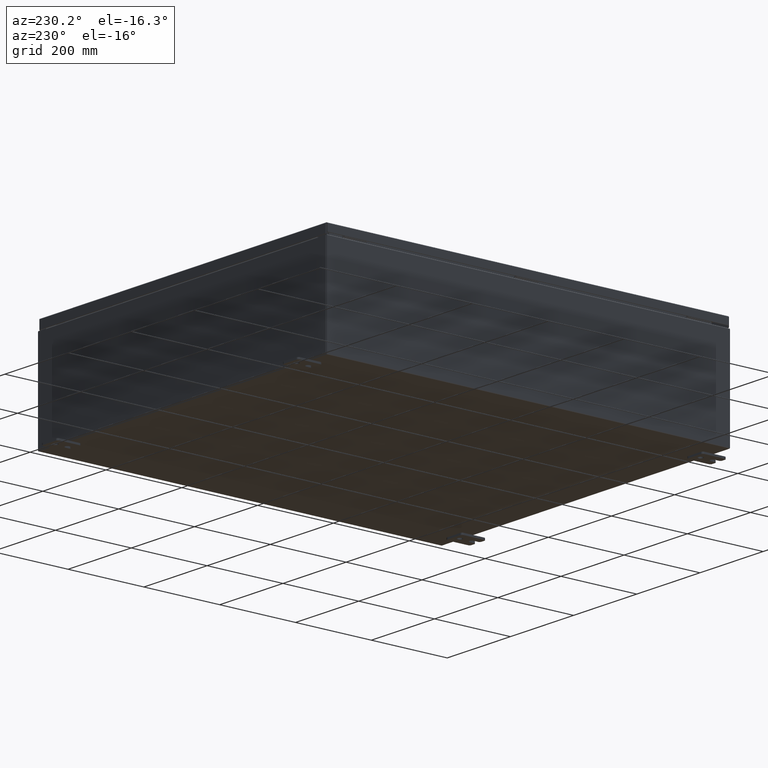
[diagram: clean part render]
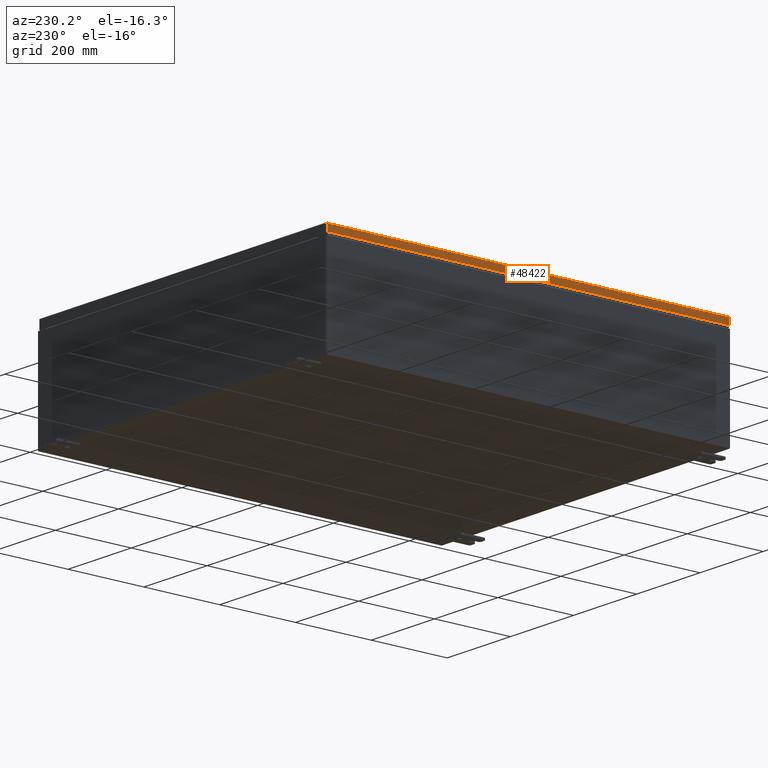
[diagram: same view with one face highlighted and labeled with its STEP entity id]
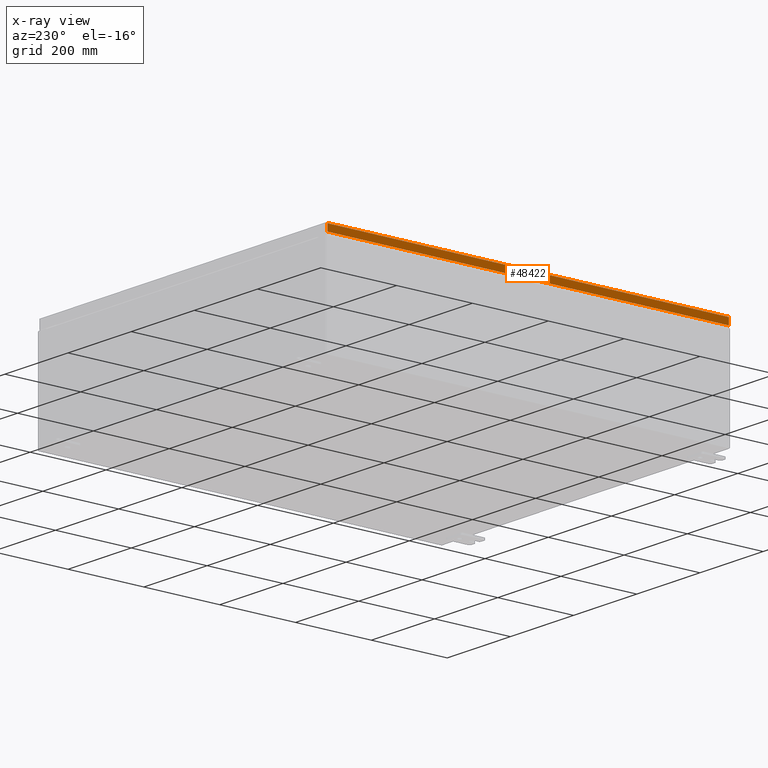
[diagram: x-ray of the same camera — body ghosted, the highlighted face saturated]
A machine part, auxiliary view. The second image highlights one B-rep face of the part: STEP entity #48422.
The next image is the same camera in x-ray: the body ghosted, the highlighted face saturated — about 0% of this face is hidden behind the body in this view.
In plain terms, the highlighted planar face has unit normal (1, -0, -0).
Its self-contained STEP definition (entity closure, byte-faithful):
#1740 = CARTESIAN_POINT ( 'NONE',  ( -17.93750000000000000, 1.872335221926305700E-015, 5.468538495836085700E-014 ) ) ;
#3647 = CARTESIAN_POINT ( 'NONE',  ( -17.93750000000000400, -20.93750000000000000, -0.08770000000000004200 ) ) ;
#3738 = EDGE_CURVE ( 'NONE', #6553, #42019, #26381, .T. ) ;
#6090 = AXIS2_PLACEMENT_3D ( 'NONE', #1740, #38862, #7067 ) ;
#6397 = VECTOR ( 'NONE', #25399, 39.37007874015748100 ) ;
#6553 = VERTEX_POINT ( 'NONE', #65268 ) ;
#7067 = DIRECTION ( 'NONE',  ( -3.034122441942816500E-015, 0.0000000000000000000, -1.000000000000000000 ) ) ;
#8733 = DIRECTION ( 'NONE',  ( -1.043810576683650200E-016, -1.000000000000000000, 1.565715865025488000E-016 ) ) ;
#10571 = LINE ( 'NONE', #43394, #51246 ) ;
#11710 = VECTOR ( 'NONE', #8733, 39.37007874015748100 ) ;
#11720 = CARTESIAN_POINT ( 'NONE',  ( -17.93750000000000400, -20.84865786437626800, -0.08770000000000334500 ) ) ;
#12519 = FACE_OUTER_BOUND ( 'NONE', #46049, .T. ) ;
#14723 = CARTESIAN_POINT ( 'NONE',  ( -17.93750000000000400, -20.84865786437627100, -0.07469999999999976700 ) ) ;
#16696 = CARTESIAN_POINT ( 'NONE',  ( -17.93750000000000700, -20.84865786437626800, -0.7949999999999996000 ) ) ;
#22862 = ORIENTED_EDGE ( 'NONE', *, *, #3738, .T. ) ;
#25399 = DIRECTION ( 'NONE',  ( -3.034122441942816100E-015, 6.982962677686267500E-015, -1.000000000000000000 ) ) ;
#26260 = EDGE_CURVE ( 'NONE', #34564, #60704, #50353, .T. ) ;
#26381 = LINE ( 'NONE', #57338, #67087 ) ;
#27713 = ORIENTED_EDGE ( 'NONE', *, *, #47958, .F. ) ;
#32697 = DIRECTION ( 'NONE',  ( 1.043810576683658800E-016, 1.000000000000000000, 1.239525059811844700E-016 ) ) ;
#34564 = VERTEX_POINT ( 'NONE', #11720 ) ;
#38862 = DIRECTION ( 'NONE',  ( 1.000000000000000000, -1.043810576683654900E-016, -3.034122441942816500E-015 ) ) ;
#39941 = LINE ( 'NONE', #3647, #11710 ) ;
#41311 = ORIENTED_EDGE ( 'NONE', *, *, #53577, .F. ) ;
#42019 = VERTEX_POINT ( 'NONE', #50018 ) ;
#43394 = CARTESIAN_POINT ( 'NONE',  ( -17.93750000000000700, -20.93750000000000000, -0.7949999999999997100 ) ) ;
#46049 = EDGE_LOOP ( 'NONE', ( #27713, #22862, #41311, #55536 ) ) ;
#46665 = DIRECTION ( 'NONE',  ( -3.034122441942816100E-015, 6.982962677686267500E-015, -1.000000000000000000 ) ) ;
#47958 = EDGE_CURVE ( 'NONE', #6553, #34564, #39941, .T. ) ;
#48422 = ADVANCED_FACE ( 'NONE', ( #12519 ), #59988, .F. ) ;
#50018 = CARTESIAN_POINT ( 'NONE',  ( -17.93750000000000000, 20.84865786437627800, -0.7949999999999944900 ) ) ;
#50353 = LINE ( 'NONE', #14723, #6397 ) ;
#51246 = VECTOR ( 'NONE', #32697, 39.37007874015748100 ) ;
#53577 = EDGE_CURVE ( 'NONE', #60704, #42019, #10571, .T. ) ;
#55536 = ORIENTED_EDGE ( 'NONE', *, *, #26260, .F. ) ;
#57338 = CARTESIAN_POINT ( 'NONE',  ( -17.93750000000000000, 20.84865786437627100, 2.002707847051506500E-013 ) ) ;
#59988 = PLANE ( 'NONE',  #6090 ) ;
#60704 = VERTEX_POINT ( 'NONE', #16696 ) ;
#65268 = CARTESIAN_POINT ( 'NONE',  ( -17.93750000000000000, 20.84865786437626800, -0.08770000000000659200 ) ) ;
#67087 = VECTOR ( 'NONE', #46665, 39.37007874015748100 ) ;